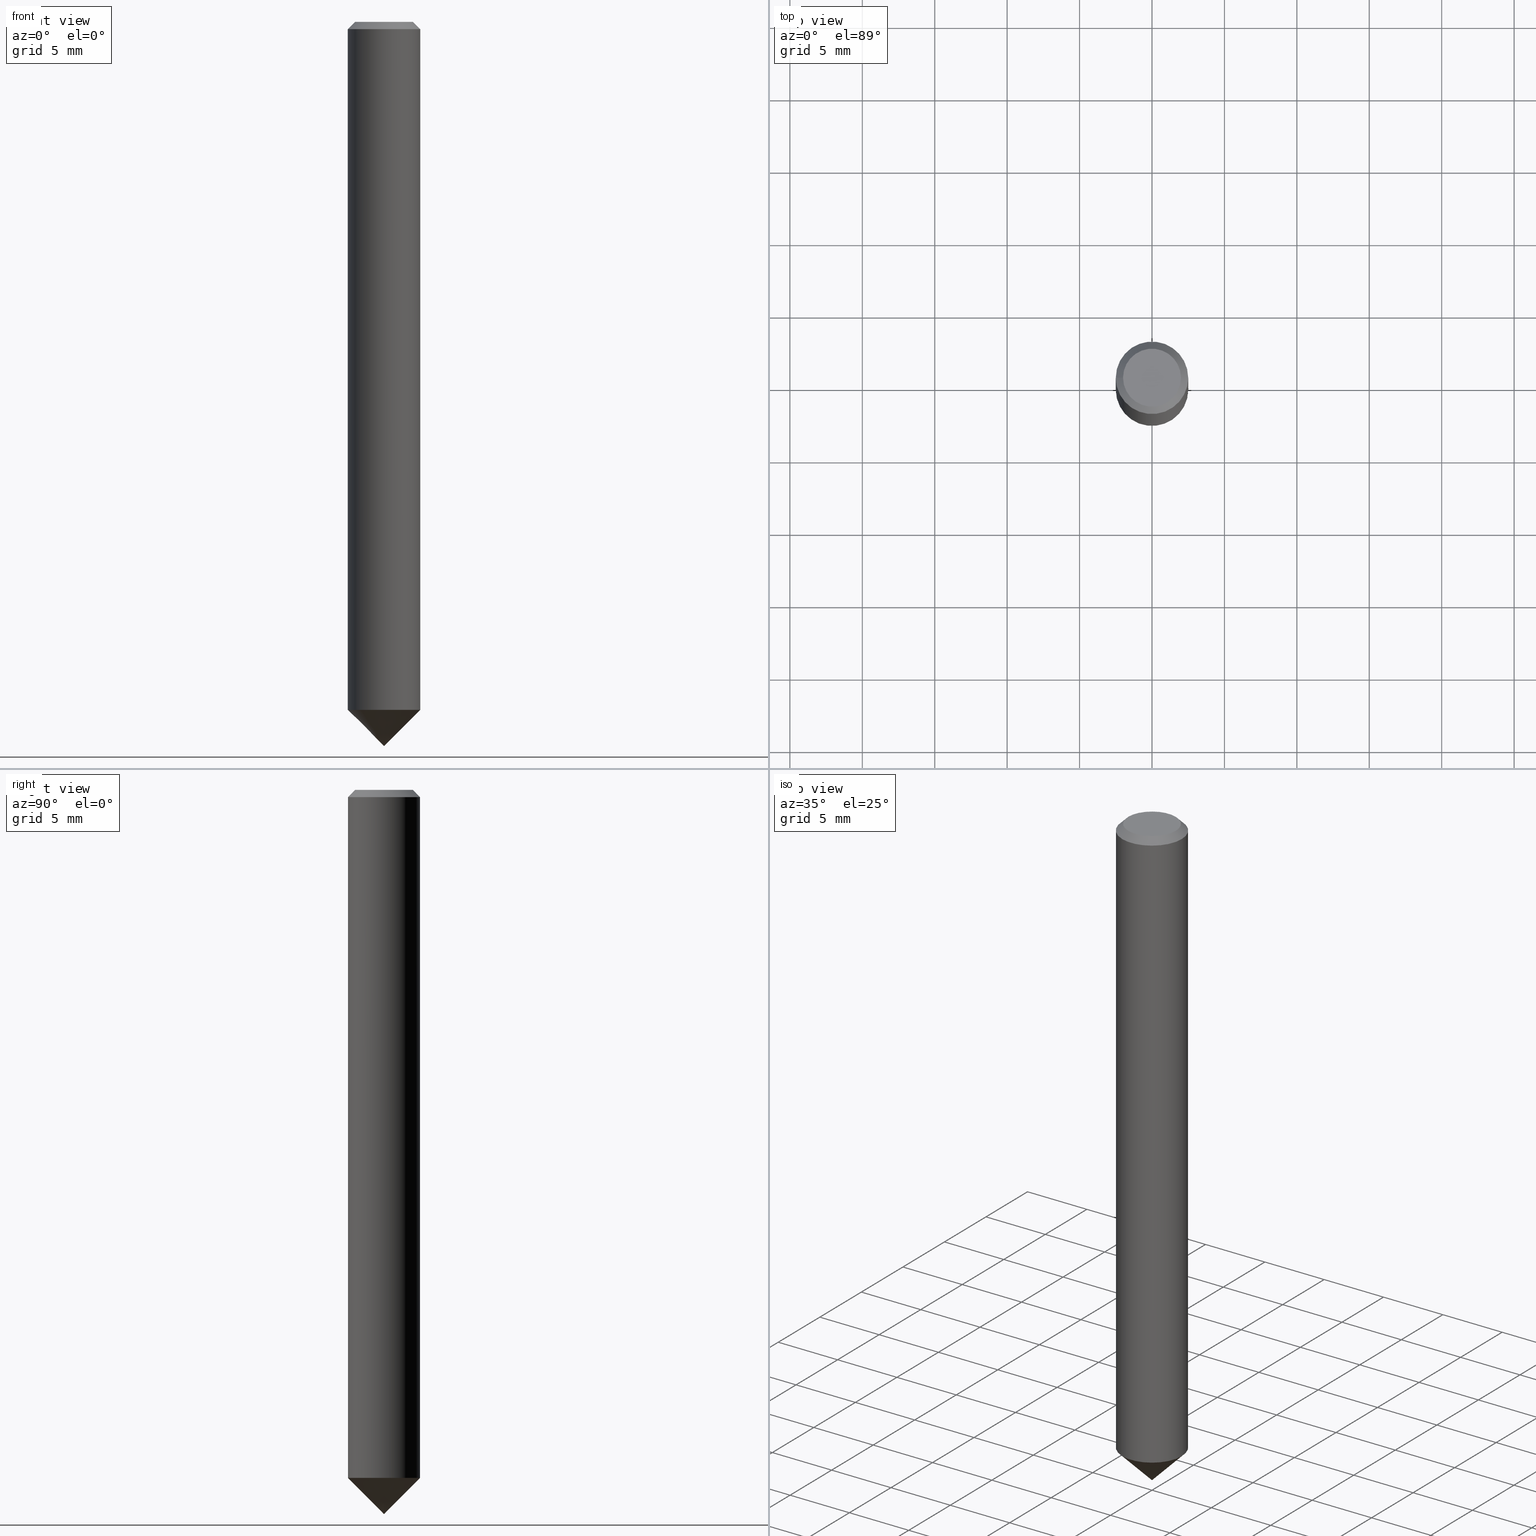
[diagram: canonical four-view strip — front | top / right | iso, engineering-drawing reading convention]
A machine part, canonical four-view strip (front | top / right | iso — engineering-drawing reading convention). The complete STEP part file that produces these views, byte-faithful:
ISO-10303-21;
HEADER;
FILE_DESCRIPTION (( 'STEP AP203' ),
    '1' );
FILE_NAME ('890.050.00.STEP',
    '2019-01-08T22:15:27',
    ( '' ),
    ( '' ),
    'SwSTEP 2.0',
    'SolidWorks 2019',
    '' );
FILE_SCHEMA (( 'CONFIG_CONTROL_DESIGN' ));
ENDSEC;

DATA;
#1 = PRODUCT ( '890.050.00', '890.050.00', '', ( #138 ) ) ;
#2 = CARTESIAN_POINT ( 'NONE',  ( -3.316907271900976814E-13, 0.0000000000000000000, -47.50000000000000000 ) ) ;
#3 = DIRECTION ( 'NONE',  ( -1.000000000000000000, 0.0000000000000000000, 6.982962677686266711E-15 ) ) ;
#4 = CONICAL_SURFACE ( 'NONE', #105, 1.999999999999999112, 0.7853981633974487231 ) ;
#5 = CARTESIAN_POINT ( 'NONE',  ( 0.0000000000000000000, 0.0000000000000000000, 0.0000000000000000000 ) ) ;
#6 = APPROVAL_STATUS ( 'not_yet_approved' ) ;
#7 = CARTESIAN_POINT ( 'NONE',  ( 2.499999999999667821, 0.0000000000000000000, -47.50000000000003553 ) ) ;
#8 = DATE_AND_TIME ( #94, #36 ) ;
#9 = COORDINATED_UNIVERSAL_TIME_OFFSET ( 1, 0, .AHEAD. ) ;
#10 = DATE_TIME_ROLE ( 'creation_date' ) ;
#11 = EDGE_CURVE ( 'NONE', #88, #88, #166, .T. ) ;
#12 = PERSON_AND_ORGANIZATION ( #103, #22 ) ;
#13 = LOCAL_TIME ( 23, 15, 27.00000000000000000, #59 ) ;
#14 = EDGE_LOOP ( 'NONE', ( #95 ) ) ;
#15 = EDGE_LOOP ( 'NONE', ( #71 ) ) ;
#16 = AXIS2_PLACEMENT_3D ( 'NONE', #101, #18, #76 ) ;
#17 = DIRECTION ( 'NONE',  ( -6.982962677686266711E-15, 0.0000000000000000000, -1.000000000000000000 ) ) ;
#18 = DIRECTION ( 'NONE',  ( 6.982962677686266711E-15, -0.0000000000000000000, 1.000000000000000000 ) ) ;
#19 = FACE_OUTER_BOUND ( 'NONE', #15, .T. ) ;
#20 = CC_DESIGN_PERSON_AND_ORGANIZATION_ASSIGNMENT ( #154, #49, ( #70 ) ) ;
#21 = CARTESIAN_POINT ( 'NONE',  ( -3.316907271900977823E-13, 0.0000000000000000000, -47.50000000000001421 ) ) ;
#22 = ORGANIZATION ( 'UNSPECIFIED', 'UNSPECIFIED', '' ) ;
#23 = PERSON_AND_ORGANIZATION ( #103, #22 ) ;
#24 = DESIGN_CONTEXT ( 'detailed design', #82, 'design' ) ;
#25 = CIRCLE ( 'NONE', #115, 2.499999999999999556 ) ;
#26 = CARTESIAN_POINT ( 'NONE',  ( -3.316907271900977823E-13, 0.0000000000000000000, -47.50000000000001421 ) ) ;
#27 = DIRECTION ( 'NONE',  ( -6.982962677686266711E-15, 0.0000000000000000000, -1.000000000000000000 ) ) ;
#28 = CYLINDRICAL_SURFACE ( 'NONE', #50, 2.499999999999999556 ) ;
#29 = FACE_OUTER_BOUND ( 'NONE', #67, .T. ) ;
#30 = CARTESIAN_POINT ( 'NONE',  ( -8.401226687859025458E-31, 0.0000000000000000000, -1.203103478514178000E-16 ) ) ;
#31 = FACE_OUTER_BOUND ( 'NONE', #14, .T. ) ;
#32 = AXIS2_PLACEMENT_3D ( 'NONE', #30, #54, #176 ) ;
#33 = CC_DESIGN_PERSON_AND_ORGANIZATION_ASSIGNMENT ( #180, #167, ( #172 ) ) ;
#34 = PERSON_AND_ORGANIZATION_ROLE ( 'creator' ) ;
#35 = DATE_AND_TIME ( #164, #83 ) ;
#36 = LOCAL_TIME ( 23, 15, 27.00000000000000000, #37 ) ;
#37 = COORDINATED_UNIVERSAL_TIME_OFFSET ( 1, 0, .AHEAD. ) ;
#38 = APPROVAL ( #78, 'UNSPECIFIED' ) ;
#39 = CARTESIAN_POINT ( 'NONE',  ( 0.0000000000000000000, 0.0000000000000000000, 0.0000000000000000000 ) ) ;
#40 = MANIFOLD_SOLID_BREP ( 'TYp 17 drehen[2]', #147 ) ;
#41 = DIRECTION ( 'NONE',  ( 1.000000000000000000, 0.0000000000000000000, -8.326672684688675631E-15 ) ) ;
#42 = ADVANCED_FACE ( 'NONE', ( #142, #169 ), #4, .T. ) ;
#43 = VERTEX_POINT ( 'NONE', #110 ) ;
#44 = CC_DESIGN_SECURITY_CLASSIFICATION ( #172, ( #137 ) ) ;
#45 = DIRECTION ( 'NONE',  ( -6.982962677686266711E-15, 0.0000000000000000000, -1.000000000000000000 ) ) ;
#46 = FACE_OUTER_BOUND ( 'NONE', #171, .T. ) ;
#47 = AXIS2_PLACEMENT_3D ( 'NONE', #2, #158, #3 ) ;
#48 = DIRECTION ( 'NONE',  ( 1.000000000000000000, 0.0000000000000000000, 0.0000000000000000000 ) ) ;
#49 = PERSON_AND_ORGANIZATION_ROLE ( 'creator' ) ;
#50 = AXIS2_PLACEMENT_3D ( 'NONE', #157, #27, #160 ) ;
#51 = LOCAL_TIME ( 23, 15, 27.00000000000000000, #117 ) ;
#52 = ORIENTED_EDGE ( 'NONE', *, *, #11, .F. ) ;
#53 = EDGE_CURVE ( 'NONE', #135, #135, #25, .T. ) ;
#54 = DIRECTION ( 'NONE',  ( -6.982962677686266711E-15, 0.0000000000000000000, -1.000000000000000000 ) ) ;
#55 = VERTEX_POINT ( 'NONE', #7 ) ;
#56 = LOCAL_TIME ( 23, 15, 27.00000000000000000, #9 ) ;
#57 = APPROVAL_DATE_TIME ( #87, #143 ) ;
#58 = CARTESIAN_POINT ( 'NONE',  ( 0.0000000000000000000, 0.0000000000000000000, 0.0000000000000000000 ) ) ;
#59 = COORDINATED_UNIVERSAL_TIME_OFFSET ( 1, 0, .AHEAD. ) ;
#60 = CALENDAR_DATE ( 2019, 8, 1 ) ;
#61 = APPROVAL_ROLE ( '' ) ;
#62 = APPROVAL_DATE_TIME ( #136, #38 ) ;
#63 = COORDINATED_UNIVERSAL_TIME_OFFSET ( 1, 0, .AHEAD. ) ;
#64 = CIRCLE ( 'NONE', #170, 2.499999999999999556 ) ;
#65 = EDGE_CURVE ( 'NONE', #43, #43, #69, .T. ) ;
#66 = ORIENTED_EDGE ( 'NONE', *, *, #134, .F. ) ;
#67 = EDGE_LOOP ( 'NONE', ( #123 ) ) ;
#68 = ADVANCED_FACE ( 'NONE', ( #46 ), #107, .T. ) ;
#69 = CIRCLE ( 'NONE', #150, 1.999999999999999112 ) ;
#70 = PRODUCT_DEFINITION ( 'UNKNOWN', '', #137, #24 ) ;
#71 = ORIENTED_EDGE ( 'NONE', *, *, #134, .T. ) ;
#72 = ADVANCED_BREP_SHAPE_REPRESENTATION ( '890.050.00', ( #100, #40, #80 ), #128 ) ;
#73 = FACE_OUTER_BOUND ( 'NONE', #109, .T. ) ;
#74 = DIRECTION ( 'NONE',  ( 6.982962677686266711E-15, -0.0000000000000000000, 1.000000000000000000 ) ) ;
#75 = APPROVAL ( #116, 'UNSPECIFIED' ) ;
#76 = DIRECTION ( 'NONE',  ( 1.000000000000000000, 0.0000000000000000000, -6.994405055138460172E-15 ) ) ;
#77 = PERSON_AND_ORGANIZATION ( #103, #22 ) ;
#78 = APPROVAL_STATUS ( 'not_yet_approved' ) ;
#79 = APPROVAL_ROLE ( '' ) ;
#80 = AXIS2_PLACEMENT_3D ( 'NONE', #58, #113, #48 ) ;
#81 = EDGE_LOOP ( 'NONE', ( #52 ) ) ;
#82 = APPLICATION_CONTEXT ( 'configuration controlled 3d designs of mechanical parts and assemblies' ) ;
#83 = LOCAL_TIME ( 23, 15, 27.00000000000000000, #63 ) ;
#84 = ORIENTED_EDGE ( 'NONE', *, *, #65, .F. ) ;
#85 = DIRECTION ( 'NONE',  ( 6.982962677686266711E-15, -0.0000000000000000000, 1.000000000000000000 ) ) ;
#86 = CARTESIAN_POINT ( 'NONE',  ( -2.500000000000003553, 0.0000000000000000000, -0.4999999999999830136 ) ) ;
#87 = DATE_AND_TIME ( #114, #13 ) ;
#88 = VERTEX_POINT ( 'NONE', #86 ) ;
#89 =( NAMED_UNIT ( * ) SI_UNIT ( $, .STERADIAN. ) SOLID_ANGLE_UNIT ( ) );
#90 = PLANE ( 'NONE',  #47 ) ;
#91 = PERSON_AND_ORGANIZATION ( #103, #22 ) ;
#92 = APPLICATION_PROTOCOL_DEFINITION ( 'international standard', 'config_control_design', 1994, #82 ) ;
#93 = PERSON_AND_ORGANIZATION ( #103, #22 ) ;
#94 = CALENDAR_DATE ( 2019, 8, 1 ) ;
#95 = ORIENTED_EDGE ( 'NONE', *, *, #53, .T. ) ;
#96 = ADVANCED_FACE ( 'NONE', ( #19 ), #90, .F. ) ;
#97 = ORIENTED_EDGE ( 'NONE', *, *, #53, .F. ) ;
#98 =( NAMED_UNIT ( * ) PLANE_ANGLE_UNIT ( ) SI_UNIT ( $, .RADIAN. ) );
#99 = AXIS2_PLACEMENT_3D ( 'NONE', #177, #45, #153 ) ;
#100 = MANIFOLD_SOLID_BREP ( 'TYp 17 drehen[1]', #183 ) ;
#101 = CARTESIAN_POINT ( 'NONE',  ( 6.633814543801953224E-12, 0.0000000000000000000, 950.0000000000000000 ) ) ;
#102 = APPROVAL_PERSON_ORGANIZATION ( #120, #75, #61 ) ;
#103 = PERSON ( 'UNSPECIFIED', 'UNSPECIFIED', 'UNSPECIFIED', ('UNSPECIFIED'), ('UNSPECIFIED'), ('UNSPECIFIED') ) ;
#104 = APPROVAL_DATE_TIME ( #35, #75 ) ;
#105 = AXIS2_PLACEMENT_3D ( 'NONE', #39, #17, #125 ) ;
#106 = CC_DESIGN_APPROVAL ( #143, ( #172 ) ) ;
#107 = CONICAL_SURFACE ( 'NONE', #16, 1000.000000000003752, 0.7853981633974502774 ) ;
#108 = DIRECTION ( 'NONE',  ( -1.000000000000000000, 0.0000000000000000000, 6.982261990806648555E-15 ) ) ;
#109 = EDGE_LOOP ( 'NONE', ( #84 ) ) ;
#110 = CARTESIAN_POINT ( 'NONE',  ( -1.999999999999999112, 0.0000000000000000000, 1.396592535537252711E-14 ) ) ;
#111 = PRODUCT_DEFINITION_SHAPE ( 'NONE', 'NONE',  #70 ) ;
#112 = DIRECTION ( 'NONE',  ( 1.000000000000000000, 0.0000000000000000000, -8.326672684688675631E-15 ) ) ;
#113 = DIRECTION ( 'NONE',  ( 0.0000000000000000000, 0.0000000000000000000, 1.000000000000000000 ) ) ;
#114 = CALENDAR_DATE ( 2019, 8, 1 ) ;
#115 = AXIS2_PLACEMENT_3D ( 'NONE', #26, #85, #41 ) ;
#116 = APPROVAL_STATUS ( 'not_yet_approved' ) ;
#117 = COORDINATED_UNIVERSAL_TIME_OFFSET ( 1, 0, .AHEAD. ) ;
#118 = ADVANCED_FACE ( 'NONE', ( #31, #29 ), #28, .T. ) ;
#119 = SECURITY_CLASSIFICATION_LEVEL ( 'unclassified' ) ;
#120 = PERSON_AND_ORGANIZATION ( #103, #22 ) ;
#121 = AXIS2_PLACEMENT_3D ( 'NONE', #181, #144, #108 ) ;
#122 = EDGE_LOOP ( 'NONE', ( #97 ) ) ;
#123 = ORIENTED_EDGE ( 'NONE', *, *, #11, .T. ) ;
#124 = APPROVAL_PERSON_ORGANIZATION ( #77, #38, #79 ) ;
#125 = DIRECTION ( 'NONE',  ( -1.000000000000000000, 0.0000000000000000000, 6.982962677686266711E-15 ) ) ;
#126 = CC_DESIGN_PERSON_AND_ORGANIZATION_ASSIGNMENT ( #23, #34, ( #137 ) ) ;
#127 = ORIENTED_EDGE ( 'NONE', *, *, #65, .T. ) ;
#128 =( GEOMETRIC_REPRESENTATION_CONTEXT ( 3 ) GLOBAL_UNCERTAINTY_ASSIGNED_CONTEXT ( ( #162 ) ) GLOBAL_UNIT_ASSIGNED_CONTEXT ( ( #175, #98, #89 ) ) REPRESENTATION_CONTEXT ( 'NONE', 'WORKASPACE' ) );
#129 = APPROVAL_PERSON_ORGANIZATION ( #91, #143, #149 ) ;
#130 = PLANE ( 'NONE',  #32 ) ;
#131 = CC_DESIGN_DATE_AND_TIME_ASSIGNMENT ( #155, #10, ( #70 ) ) ;
#132 = FACE_OUTER_BOUND ( 'NONE', #122, .T. ) ;
#133 = DIRECTION ( 'NONE',  ( -6.982962677686266711E-15, 0.0000000000000000000, -1.000000000000000000 ) ) ;
#134 = EDGE_CURVE ( 'NONE', #55, #55, #64, .T. ) ;
#135 = VERTEX_POINT ( 'NONE', #146 ) ;
#136 = DATE_AND_TIME ( #179, #51 ) ;
#137 = PRODUCT_DEFINITION_FORMATION_WITH_SPECIFIED_SOURCE ( 'ANY', '', #1, .NOT_KNOWN. ) ;
#138 = MECHANICAL_CONTEXT ( 'NONE', #174, 'mechanical' ) ;
#139 = CC_DESIGN_PERSON_AND_ORGANIZATION_ASSIGNMENT ( #12, #165, ( #1 ) ) ;
#140 = PERSON_AND_ORGANIZATION_ROLE ( 'design_supplier' ) ;
#141 = EDGE_LOOP ( 'NONE', ( #127 ) ) ;
#142 = FACE_OUTER_BOUND ( 'NONE', #81, .T. ) ;
#143 = APPROVAL ( #6, 'UNSPECIFIED' ) ;
#144 = DIRECTION ( 'NONE',  ( -6.982962677686266711E-15, 0.0000000000000000000, -1.000000000000000000 ) ) ;
#145 = ADVANCED_FACE ( 'NONE', ( #132 ), #178, .T. ) ;
#146 = CARTESIAN_POINT ( 'NONE',  ( 2.499999999999667821, 0.0000000000000000000, -47.50000000000003553 ) ) ;
#147 = CLOSED_SHELL ( 'NONE', ( #96, #68 ) ) ;
#148 = CC_DESIGN_APPROVAL ( #75, ( #137 ) ) ;
#149 = APPROVAL_ROLE ( '' ) ;
#150 = AXIS2_PLACEMENT_3D ( 'NONE', #5, #133, #173 ) ;
#151 = CC_DESIGN_APPROVAL ( #38, ( #70 ) ) ;
#152 = DATE_TIME_ROLE ( 'classification_date' ) ;
#153 = DIRECTION ( 'NONE',  ( -1.000000000000000000, 0.0000000000000000000, 6.982962677686266711E-15 ) ) ;
#154 = PERSON_AND_ORGANIZATION ( #103, #22 ) ;
#155 = DATE_AND_TIME ( #60, #56 ) ;
#156 = PRODUCT_RELATED_PRODUCT_CATEGORY ( 'detail', '', ( #1 ) ) ;
#157 = CARTESIAN_POINT ( 'NONE',  ( -3.491481338843133355E-13, 0.0000000000000000000, -50.00000000000000000 ) ) ;
#158 = DIRECTION ( 'NONE',  ( -6.982962677686266711E-15, 0.0000000000000000000, -1.000000000000000000 ) ) ;
#159 = APPLICATION_PROTOCOL_DEFINITION ( 'international standard', 'config_control_design', 1994, #174 ) ;
#160 = DIRECTION ( 'NONE',  ( -1.000000000000000000, 0.0000000000000000000, 8.326672684688675631E-15 ) ) ;
#161 = SHAPE_DEFINITION_REPRESENTATION ( #111, #72 ) ;
#162 = UNCERTAINTY_MEASURE_WITH_UNIT (LENGTH_MEASURE( 1.000000000000000082E-05 ), #175, 'distance_accuracy_value', 'NONE');
#163 = CC_DESIGN_DATE_AND_TIME_ASSIGNMENT ( #8, #152, ( #172 ) ) ;
#164 = CALENDAR_DATE ( 2019, 8, 1 ) ;
#165 = PERSON_AND_ORGANIZATION_ROLE ( 'design_owner' ) ;
#166 = CIRCLE ( 'NONE', #121, 2.500000000000000000 ) ;
#167 = PERSON_AND_ORGANIZATION_ROLE ( 'classification_officer' ) ;
#168 = CC_DESIGN_PERSON_AND_ORGANIZATION_ASSIGNMENT ( #93, #140, ( #137 ) ) ;
#169 = FACE_BOUND ( 'NONE', #141, .T. ) ;
#170 = AXIS2_PLACEMENT_3D ( 'NONE', #21, #74, #112 ) ;
#171 = EDGE_LOOP ( 'NONE', ( #66 ) ) ;
#172 = SECURITY_CLASSIFICATION ( '', '', #119 ) ;
#173 = DIRECTION ( 'NONE',  ( -1.000000000000000000, 0.0000000000000000000, 6.982962677686266711E-15 ) ) ;
#174 = APPLICATION_CONTEXT ( 'configuration controlled 3d designs of mechanical parts and assemblies' ) ;
#175 =( LENGTH_UNIT ( ) NAMED_UNIT ( * ) SI_UNIT ( .MILLI., .METRE. ) );
#176 = DIRECTION ( 'NONE',  ( -1.000000000000000000, 0.0000000000000000000, 6.982962677686266711E-15 ) ) ;
#177 = CARTESIAN_POINT ( 'NONE',  ( -3.316907271900976814E-13, 0.0000000000000000000, -47.50000000000000000 ) ) ;
#178 = PLANE ( 'NONE',  #99 ) ;
#179 = CALENDAR_DATE ( 2019, 8, 1 ) ;
#180 = PERSON_AND_ORGANIZATION ( #103, #22 ) ;
#181 = CARTESIAN_POINT ( 'NONE',  ( -3.491481338843136511E-15, 0.0000000000000000000, -0.5000000000000004441 ) ) ;
#182 = ADVANCED_FACE ( 'NONE', ( #73 ), #130, .F. ) ;
#183 = CLOSED_SHELL ( 'NONE', ( #182, #42, #118, #145 ) ) ;
ENDSEC;
END-ISO-10303-21;
12535